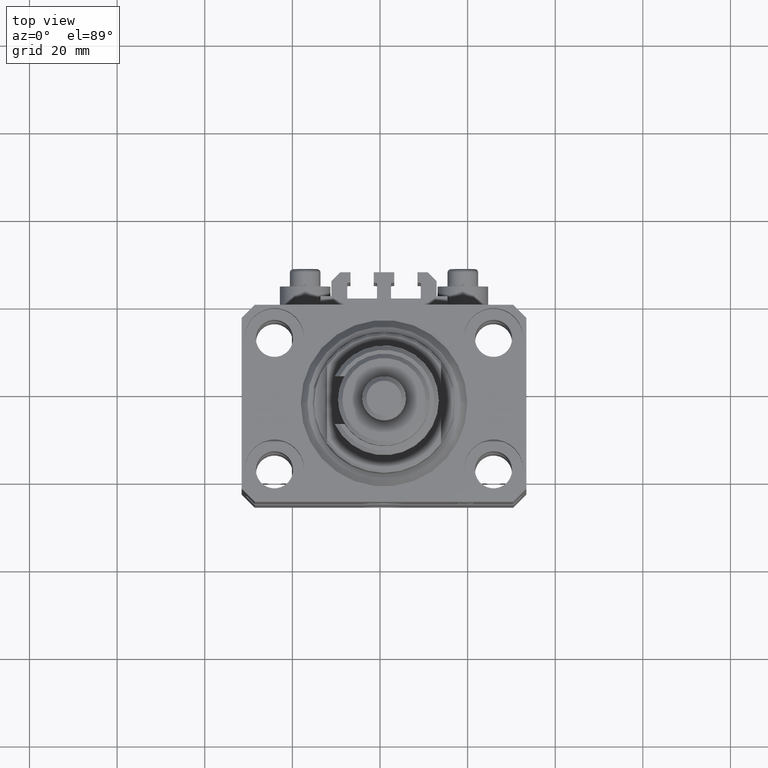
[diagram: clean part render]
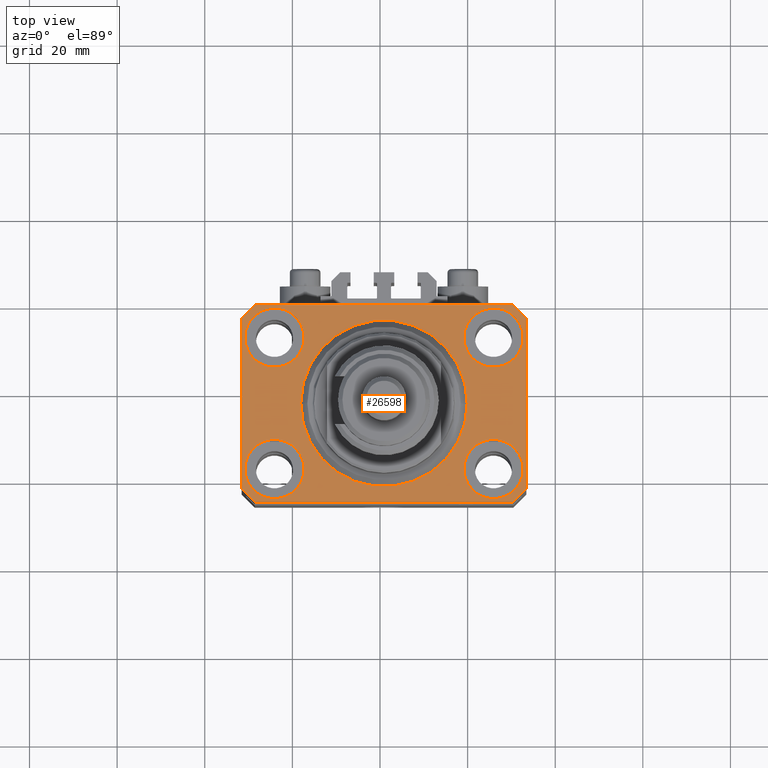
[diagram: same view with one face highlighted and labeled with its STEP entity id]
A machine part, top view. The second image highlights one B-rep face of the part: STEP entity #26598.
In plain terms, the highlighted planar face has unit normal (0, 0, 1).
Its self-contained STEP definition (entity closure, byte-faithful):
#207 = EDGE_LOOP ( 'NONE', ( #43604, #21803 ) ) ;
#511 = AXIS2_PLACEMENT_3D ( 'NONE', #8791, #39605, #33021 ) ;
#1573 = CARTESIAN_POINT ( 'NONE',  ( 32.49999999999651124, -19.49999999999949196, 0.000000000000000000 ) ) ;
#2046 = LINE ( 'NONE', #43494, #10161 ) ;
#2167 = ORIENTED_EDGE ( 'NONE', *, *, #2533, .T. ) ;
#2309 = AXIS2_PLACEMENT_3D ( 'NONE', #49609, #22611, #15026 ) ;
#2350 = ORIENTED_EDGE ( 'NONE', *, *, #17316, .T. ) ;
#2533 = EDGE_CURVE ( 'NONE', #21348, #44961, #21977, .T. ) ;
#2844 = VECTOR ( 'NONE', #29638, 1000.000000000000114 ) ;
#3752 = DIRECTION ( 'NONE',  ( 0.000000000000000000, 0.000000000000000000, 1.000000000000000000 ) ) ;
#3951 = DIRECTION ( 'NONE',  ( 1.000000000000000000, 0.000000000000000000, 0.000000000000000000 ) ) ;
#4520 = CIRCLE ( 'NONE', #511, 6.750000000022533087 ) ;
#5346 = EDGE_CURVE ( 'NONE', #39674, #20994, #35932, .T. ) ;
#5373 = CARTESIAN_POINT ( 'NONE',  ( -25.00000000000000355, -15.00000000000000000, 0.000000000000000000 ) ) ;
#5506 = CARTESIAN_POINT ( 'NONE',  ( -29.49999999999650413, 22.49999999999949907, 0.000000000000000000 ) ) ;
#5570 = EDGE_LOOP ( 'NONE', ( #6812, #9183 ) ) ;
#5784 = VERTEX_POINT ( 'NONE', #5506 ) ;
#6334 = CARTESIAN_POINT ( 'NONE',  ( 32.49999999999702993, 19.49999999999945999, 0.000000000000000000 ) ) ;
#6385 = CARTESIAN_POINT ( 'NONE',  ( 29.49999999999650413, -22.49999999999949196, 0.000000000000000000 ) ) ;
#6416 = DIRECTION ( 'NONE',  ( 1.000000000000000000, 0.000000000000000000, 0.000000000000000000 ) ) ;
#6443 = EDGE_CURVE ( 'NONE', #41664, #37750, #46058, .T. ) ;
#6812 = ORIENTED_EDGE ( 'NONE', *, *, #47298, .F. ) ;
#6855 = EDGE_CURVE ( 'NONE', #45145, #15035, #30716, .T. ) ;
#6986 = CARTESIAN_POINT ( 'NONE',  ( -18.24999999995846167, -15.00000000000000000, 0.000000000000000000 ) ) ;
#7299 = CARTESIAN_POINT ( 'NONE',  ( 24.99999999999999645, 15.00000000000000888, 0.000000000000000000 ) ) ;
#7435 = CARTESIAN_POINT ( 'NONE',  ( -31.75000000004154899, -15.00000000000000000, 0.000000000000000000 ) ) ;
#7862 = DIRECTION ( 'NONE',  ( 0.000000000000000000, -1.000000000000000000, 0.000000000000000000 ) ) ;
#8791 = CARTESIAN_POINT ( 'NONE',  ( -25.00000000000000355, 15.00000000000000000, 0.000000000000000000 ) ) ;
#9134 = DIRECTION ( 'NONE',  ( 0.000000000000000000, 0.000000000000000000, 1.000000000000000000 ) ) ;
#9183 = ORIENTED_EDGE ( 'NONE', *, *, #34484, .F. ) ;
#9381 = DIRECTION ( 'NONE',  ( -1.000000000000000000, -2.352167425053553784E-16, 0.000000000000000000 ) ) ;
#9802 = VERTEX_POINT ( 'NONE', #45006 ) ;
#10161 = VECTOR ( 'NONE', #9381, 1000.000000000000000 ) ;
#10293 = CARTESIAN_POINT ( 'NONE',  ( -29.49999999999650413, -22.49999999999949907, 0.000000000000000000 ) ) ;
#10499 = VERTEX_POINT ( 'NONE', #29951 ) ;
#11145 = EDGE_LOOP ( 'NONE', ( #2350, #11585, #48704, #48984, #49911, #13529, #38594, #2167 ) ) ;
#11585 = ORIENTED_EDGE ( 'NONE', *, *, #29967, .T. ) ;
#11710 = CARTESIAN_POINT ( 'NONE',  ( 32.49999999999651124, -19.49999999999949196, 0.000000000000000000 ) ) ;
#12820 = EDGE_CURVE ( 'NONE', #10499, #14666, #34951, .T. ) ;
#13529 = ORIENTED_EDGE ( 'NONE', *, *, #5346, .T. ) ;
#13614 = CARTESIAN_POINT ( 'NONE',  ( -29.49999999999650413, 22.49999999999949907, 0.000000000000000000 ) ) ;
#13723 = DIRECTION ( 'NONE',  ( 1.000000000000000000, 0.000000000000000000, 0.000000000000000000 ) ) ;
#13898 = CARTESIAN_POINT ( 'NONE',  ( 0.000000000000000000, 0.000000000000000000, 0.000000000000000000 ) ) ;
#14004 = DIRECTION ( 'NONE',  ( 0.000000000000000000, 0.000000000000000000, 1.000000000000000000 ) ) ;
#14080 = VERTEX_POINT ( 'NONE', #7435 ) ;
#14189 = DIRECTION ( 'NONE',  ( 1.000000000000000000, 0.000000000000000000, 0.000000000000000000 ) ) ;
#14666 = VERTEX_POINT ( 'NONE', #20904 ) ;
#15026 = DIRECTION ( 'NONE',  ( 1.000000000000000000, 0.000000000000000000, -0.000000000000000000 ) ) ;
#15035 = VERTEX_POINT ( 'NONE', #22882 ) ;
#15390 = CARTESIAN_POINT ( 'NONE',  ( 18.25000000004154543, 15.00000000000000888, 0.000000000000000000 ) ) ;
#15809 = EDGE_CURVE ( 'NONE', #45937, #39674, #44926, .T. ) ;
#15851 = VERTEX_POINT ( 'NONE', #37584 ) ;
#16262 = EDGE_CURVE ( 'NONE', #9802, #45937, #37959, .T. ) ;
#16778 = VECTOR ( 'NONE', #49310, 1000.000000000000000 ) ;
#17316 = EDGE_CURVE ( 'NONE', #44961, #5784, #2046, .T. ) ;
#18160 = DIRECTION ( 'NONE',  ( 1.000000000000000000, 1.176083712526788232E-16, 0.000000000000000000 ) ) ;
#18239 = CARTESIAN_POINT ( 'NONE',  ( 29.49999999999707967, 22.49999999999951328, 0.000000000000000000 ) ) ;
#18261 = DIRECTION ( 'NONE',  ( 0.000000000000000000, 0.000000000000000000, 1.000000000000000000 ) ) ;
#19071 = FACE_BOUND ( 'NONE', #38590, .T. ) ;
#19355 = EDGE_CURVE ( 'NONE', #14080, #42165, #41584, .T. ) ;
#19494 = CARTESIAN_POINT ( 'NONE',  ( 24.99999999999999645, 15.00000000000000888, 0.000000000000000000 ) ) ;
#19611 = AXIS2_PLACEMENT_3D ( 'NONE', #13898, #33320, #36882 ) ;
#19644 = DIRECTION ( 'NONE',  ( 0.000000000000000000, 0.000000000000000000, 1.000000000000000000 ) ) ;
#20078 = DIRECTION ( 'NONE',  ( 1.334402673828349134E-14, 1.000000000000000000, 0.000000000000000000 ) ) ;
#20134 = CARTESIAN_POINT ( 'NONE',  ( -32.49999999999650413, 19.49999999999949907, 0.000000000000000000 ) ) ;
#20608 = VECTOR ( 'NONE', #18160, 1000.000000000000000 ) ;
#20790 = VECTOR ( 'NONE', #7862, 1000.000000000000000 ) ;
#20854 = CIRCLE ( 'NONE', #28870, 6.749999999977465137 ) ;
#20904 = CARTESIAN_POINT ( 'NONE',  ( 19.00000000000000000, 0.000000000000000000, 0.000000000000000000 ) ) ;
#20994 = VERTEX_POINT ( 'NONE', #1573 ) ;
#21195 = EDGE_LOOP ( 'NONE', ( #32958, #23146 ) ) ;
#21207 = ORIENTED_EDGE ( 'NONE', *, *, #42942, .F. ) ;
#21348 = VERTEX_POINT ( 'NONE', #6334 ) ;
#21803 = ORIENTED_EDGE ( 'NONE', *, *, #12820, .F. ) ;
#21977 = LINE ( 'NONE', #29279, #30299 ) ;
#22611 = DIRECTION ( 'NONE',  ( 0.000000000000000000, 0.000000000000000000, 1.000000000000000000 ) ) ;
#22801 = CARTESIAN_POINT ( 'NONE',  ( -32.49999999999650413, 19.49999999999949907, 0.000000000000000000 ) ) ;
#22882 = CARTESIAN_POINT ( 'NONE',  ( -31.75000000002253842, 15.00000000000000000, 0.000000000000000000 ) ) ;
#23023 = AXIS2_PLACEMENT_3D ( 'NONE', #25556, #40953, #14189 ) ;
#23114 = LINE ( 'NONE', #11710, #24016 ) ;
#23146 = ORIENTED_EDGE ( 'NONE', *, *, #6443, .F. ) ;
#23343 = FACE_BOUND ( 'NONE', #207, .T. ) ;
#23745 = CARTESIAN_POINT ( 'NONE',  ( 29.49999999999650413, -22.49999999999949196, 0.000000000000000000 ) ) ;
#24016 = VECTOR ( 'NONE', #20078, 1000.000000000000000 ) ;
#24332 = DIRECTION ( 'NONE',  ( 0.000000000000000000, 0.000000000000000000, 1.000000000000000000 ) ) ;
#24939 = EDGE_CURVE ( 'NONE', #20994, #21348, #23114, .T. ) ;
#25059 = EDGE_CURVE ( 'NONE', #42165, #14080, #46594, .T. ) ;
#25350 = EDGE_CURVE ( 'NONE', #35828, #9802, #34864, .T. ) ;
#25556 = CARTESIAN_POINT ( 'NONE',  ( -25.00000000000000355, -15.00000000000000000, 0.000000000000000000 ) ) ;
#26598 = ADVANCED_FACE ( 'NONE', ( #26864, #26624, #34678, #19071, #23343, #45835 ), #41793, .T. ) ;
#26624 = FACE_BOUND ( 'NONE', #21195, .T. ) ;
#26823 = CIRCLE ( 'NONE', #19611, 19.00000000000000000 ) ;
#26864 = FACE_BOUND ( 'NONE', #47698, .T. ) ;
#27020 = CARTESIAN_POINT ( 'NONE',  ( -18.24999999997747224, 15.00000000000000000, 0.000000000000000000 ) ) ;
#27683 = ORIENTED_EDGE ( 'NONE', *, *, #19355, .F. ) ;
#27729 = AXIS2_PLACEMENT_3D ( 'NONE', #49432, #19644, #3951 ) ;
#28052 = AXIS2_PLACEMENT_3D ( 'NONE', #5373, #24332, #13723 ) ;
#28870 = AXIS2_PLACEMENT_3D ( 'NONE', #46812, #9134, #35668 ) ;
#29018 = DIRECTION ( 'NONE',  ( -0.7071067811865474617, -0.7071067811865474617, 0.000000000000000000 ) ) ;
#29266 = LINE ( 'NONE', #13614, #30631 ) ;
#29279 = CARTESIAN_POINT ( 'NONE',  ( 32.49999999999702993, 19.49999999999945999, 0.000000000000000000 ) ) ;
#29638 = DIRECTION ( 'NONE',  ( 0.7071067811865474617, -0.7071067811865474617, 0.000000000000000000 ) ) ;
#29951 = CARTESIAN_POINT ( 'NONE',  ( -19.00000000000000000, 2.326828918379970970E-15, 0.000000000000000000 ) ) ;
#29967 = EDGE_CURVE ( 'NONE', #5784, #35828, #29266, .T. ) ;
#30299 = VECTOR ( 'NONE', #36596, 1000.000000000000000 ) ;
#30631 = VECTOR ( 'NONE', #29018, 1000.000000000000114 ) ;
#30716 = CIRCLE ( 'NONE', #43632, 6.750000000022533087 ) ;
#32247 = ORIENTED_EDGE ( 'NONE', *, *, #6855, .F. ) ;
#32735 = VERTEX_POINT ( 'NONE', #15390 ) ;
#32958 = ORIENTED_EDGE ( 'NONE', *, *, #49555, .F. ) ;
#33021 = DIRECTION ( 'NONE',  ( 1.000000000000000000, 0.000000000000000000, 0.000000000000000000 ) ) ;
#33320 = DIRECTION ( 'NONE',  ( 0.000000000000000000, 0.000000000000000000, 1.000000000000000000 ) ) ;
#33658 = CARTESIAN_POINT ( 'NONE',  ( -32.49999999999650413, -19.49999999999949907, 0.000000000000000000 ) ) ;
#34359 = DIRECTION ( 'NONE',  ( 1.000000000000000000, 0.000000000000000000, 0.000000000000000000 ) ) ;
#34484 = EDGE_CURVE ( 'NONE', #32735, #15851, #42150, .T. ) ;
#34678 = FACE_BOUND ( 'NONE', #5570, .T. ) ;
#34864 = LINE ( 'NONE', #22801, #20790 ) ;
#34951 = CIRCLE ( 'NONE', #27729, 19.00000000000000000 ) ;
#35289 = EDGE_CURVE ( 'NONE', #14666, #10499, #26823, .T. ) ;
#35326 = CARTESIAN_POINT ( 'NONE',  ( 31.74999999997746869, -15.00000000000000000, 0.000000000000000000 ) ) ;
#35668 = DIRECTION ( 'NONE',  ( 1.000000000000000000, 0.000000000000000000, 0.000000000000000000 ) ) ;
#35828 = VERTEX_POINT ( 'NONE', #20134 ) ;
#35932 = LINE ( 'NONE', #6385, #16778 ) ;
#36039 = CIRCLE ( 'NONE', #44094, 6.749999999958452790 ) ;
#36596 = DIRECTION ( 'NONE',  ( -0.7071067811865352493, 0.7071067811865597852, 0.000000000000000000 ) ) ;
#36882 = DIRECTION ( 'NONE',  ( 1.000000000000000000, 0.000000000000000000, 0.000000000000000000 ) ) ;
#36999 = ORIENTED_EDGE ( 'NONE', *, *, #25059, .F. ) ;
#37584 = CARTESIAN_POINT ( 'NONE',  ( 31.74999999995845101, 15.00000000000000888, 0.000000000000000000 ) ) ;
#37746 = CARTESIAN_POINT ( 'NONE',  ( 18.25000000002253842, -15.00000000000000000, 0.000000000000000000 ) ) ;
#37750 = VERTEX_POINT ( 'NONE', #35326 ) ;
#37959 = LINE ( 'NONE', #33658, #2844 ) ;
#38481 = CARTESIAN_POINT ( 'NONE',  ( -29.49999999999650413, -22.49999999999949907, 0.000000000000000000 ) ) ;
#38590 = EDGE_LOOP ( 'NONE', ( #32247, #21207 ) ) ;
#38594 = ORIENTED_EDGE ( 'NONE', *, *, #24939, .T. ) ;
#38909 = DIRECTION ( 'NONE',  ( 0.000000000000000000, 0.000000000000000000, 1.000000000000000000 ) ) ;
#39605 = DIRECTION ( 'NONE',  ( 0.000000000000000000, 0.000000000000000000, 1.000000000000000000 ) ) ;
#39674 = VERTEX_POINT ( 'NONE', #23745 ) ;
#40953 = DIRECTION ( 'NONE',  ( 0.000000000000000000, 0.000000000000000000, 1.000000000000000000 ) ) ;
#41584 = CIRCLE ( 'NONE', #23023, 6.750000000041541881 ) ;
#41664 = VERTEX_POINT ( 'NONE', #37746 ) ;
#41793 = PLANE ( 'NONE',  #2309 ) ;
#41958 = CARTESIAN_POINT ( 'NONE',  ( -25.00000000000000355, 15.00000000000000000, 0.000000000000000000 ) ) ;
#42016 = AXIS2_PLACEMENT_3D ( 'NONE', #48595, #14004, #6416 ) ;
#42150 = CIRCLE ( 'NONE', #49399, 6.749999999958452790 ) ;
#42165 = VERTEX_POINT ( 'NONE', #6986 ) ;
#42942 = EDGE_CURVE ( 'NONE', #15035, #45145, #4520, .T. ) ;
#43494 = CARTESIAN_POINT ( 'NONE',  ( 29.49999999999707967, 22.49999999999951328, 0.000000000000000000 ) ) ;
#43604 = ORIENTED_EDGE ( 'NONE', *, *, #35289, .F. ) ;
#43632 = AXIS2_PLACEMENT_3D ( 'NONE', #41958, #18261, #34359 ) ;
#44094 = AXIS2_PLACEMENT_3D ( 'NONE', #7299, #3752, #49742 ) ;
#44926 = LINE ( 'NONE', #10293, #20608 ) ;
#44961 = VERTEX_POINT ( 'NONE', #18239 ) ;
#45006 = CARTESIAN_POINT ( 'NONE',  ( -32.49999999999650413, -19.49999999999949907, 0.000000000000000000 ) ) ;
#45145 = VERTEX_POINT ( 'NONE', #27020 ) ;
#45835 = FACE_OUTER_BOUND ( 'NONE', #11145, .T. ) ;
#45937 = VERTEX_POINT ( 'NONE', #38481 ) ;
#46058 = CIRCLE ( 'NONE', #42016, 6.749999999977465137 ) ;
#46594 = CIRCLE ( 'NONE', #28052, 6.750000000041541881 ) ;
#46812 = CARTESIAN_POINT ( 'NONE',  ( 25.00000000000000355, -15.00000000000000000, 0.000000000000000000 ) ) ;
#46992 = DIRECTION ( 'NONE',  ( 1.000000000000000000, 0.000000000000000000, 0.000000000000000000 ) ) ;
#47298 = EDGE_CURVE ( 'NONE', #15851, #32735, #36039, .T. ) ;
#47698 = EDGE_LOOP ( 'NONE', ( #36999, #27683 ) ) ;
#48595 = CARTESIAN_POINT ( 'NONE',  ( 25.00000000000000355, -15.00000000000000000, 0.000000000000000000 ) ) ;
#48704 = ORIENTED_EDGE ( 'NONE', *, *, #25350, .T. ) ;
#48984 = ORIENTED_EDGE ( 'NONE', *, *, #16262, .T. ) ;
#49310 = DIRECTION ( 'NONE',  ( 0.7071067811865483499, 0.7071067811865466846, 0.000000000000000000 ) ) ;
#49399 = AXIS2_PLACEMENT_3D ( 'NONE', #19494, #38909, #46992 ) ;
#49432 = CARTESIAN_POINT ( 'NONE',  ( 0.000000000000000000, 0.000000000000000000, 0.000000000000000000 ) ) ;
#49555 = EDGE_CURVE ( 'NONE', #37750, #41664, #20854, .T. ) ;
#49609 = CARTESIAN_POINT ( 'NONE',  ( 0.000000000000000000, 0.000000000000000000, 0.000000000000000000 ) ) ;
#49742 = DIRECTION ( 'NONE',  ( 1.000000000000000000, 0.000000000000000000, 0.000000000000000000 ) ) ;
#49911 = ORIENTED_EDGE ( 'NONE', *, *, #15809, .T. ) ;